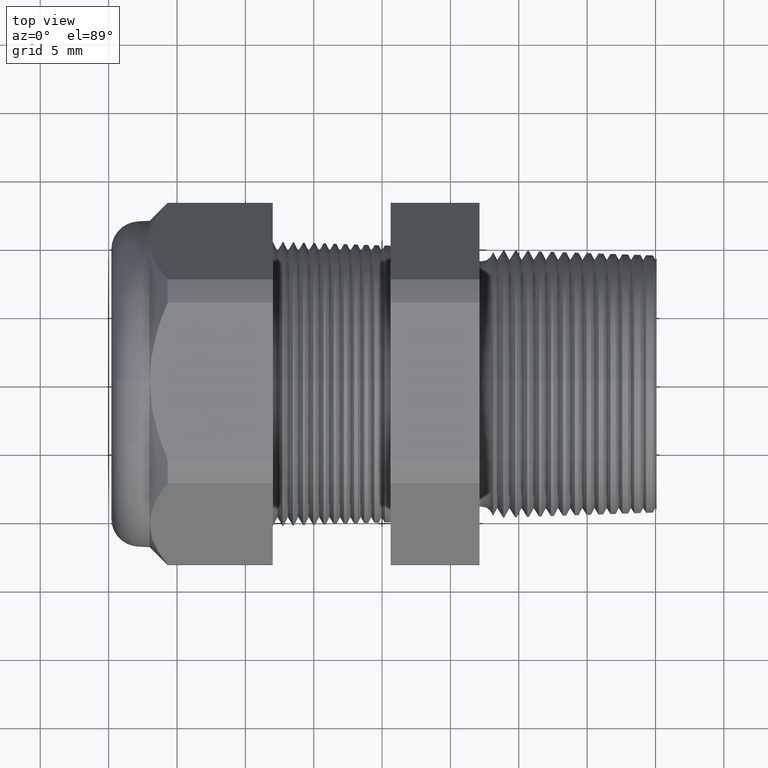
[diagram: clean part render]
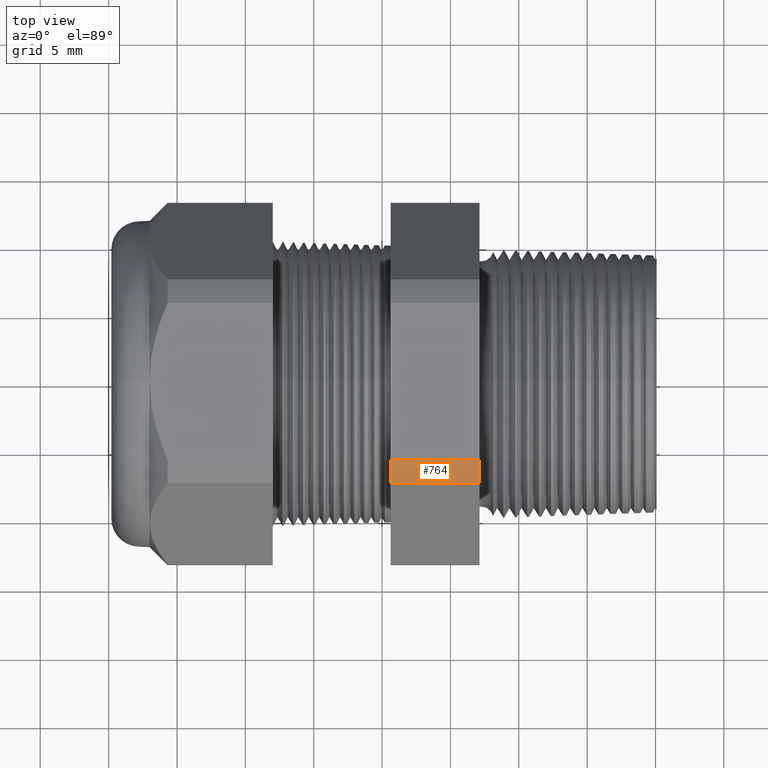
[diagram: same view with one face highlighted and labeled with its STEP entity id]
A machine part, top view. The second image highlights one B-rep face of the part: STEP entity #764.
In plain terms, the highlighted cylindrical surface (partial cylindrical patch) has radius 13.2512 mm, axis along (-1, 0, 0).
Its self-contained STEP definition (entity closure, byte-faithful):
#673 = VERTEX_POINT ( 'NONE', #3182 ) ;
#675 = EDGE_CURVE ( 'NONE', #673, #676, #3244, .T. ) ;
#676 = VERTEX_POINT ( 'NONE', #3239 ) ;
#764 = ADVANCED_FACE ( 'NONE', ( #3340 ), #3404, .T. ) ;
#765 = EDGE_LOOP ( 'NONE', ( #766, #767, #768, #771 ) ) ;
#766 = ORIENTED_EDGE ( 'NONE', *, *, #838, .F. ) ;
#767 = ORIENTED_EDGE ( 'NONE', *, *, #675, .F. ) ;
#768 = ORIENTED_EDGE ( 'NONE', *, *, #769, .T. ) ;
#769 = EDGE_CURVE ( 'NONE', #673, #770, #3399, .T. ) ;
#770 = VERTEX_POINT ( 'NONE', #3395 ) ;
#771 = ORIENTED_EDGE ( 'NONE', *, *, #772, .F. ) ;
#772 = EDGE_CURVE ( 'NONE', #839, #770, #3394, .T. ) ;
#838 = EDGE_CURVE ( 'NONE', #676, #839, #3477, .T. ) ;
#839 = VERTEX_POINT ( 'NONE', #3469 ) ;
#3182 = CARTESIAN_POINT ( 'NONE',  ( -0.3100000000000000000, -0.2264307620443835300, 0.4699999999999997000 ) ) ;
#3239 = CARTESIAN_POINT ( 'NONE',  ( -0.3100000000000000000, -0.2938165587564945900, 0.4310947921287050500 ) ) ;
#3240 = DIRECTION ( 'NONE',  ( 0.0000000000000000000, 0.0000000000000000000, -1.000000000000000000 ) ) ;
#3241 = DIRECTION ( 'NONE',  ( 1.000000000000000000, 0.0000000000000000000, 0.0000000000000000000 ) ) ;
#3242 = CARTESIAN_POINT ( 'NONE',  ( -0.3100000000000000000, 0.0000000000000000000, 0.0000000000000000000 ) ) ;
#3243 = AXIS2_PLACEMENT_3D ( 'NONE', #3242, #3241, #3240 ) ;
#3244 = CIRCLE ( 'NONE', #3243, 0.5217000000000000500 ) ;
#3340 = FACE_OUTER_BOUND ( 'NONE', #765, .T. ) ;
#3390 = DIRECTION ( 'NONE',  ( 0.0000000000000000000, 0.0000000000000000000, 1.000000000000000000 ) ) ;
#3391 = DIRECTION ( 'NONE',  ( -1.000000000000000000, 0.0000000000000000000, 0.0000000000000000000 ) ) ;
#3392 = CARTESIAN_POINT ( 'NONE',  ( -0.5659055118110235500, 0.0000000000000000000, 0.0000000000000000000 ) ) ;
#3393 = AXIS2_PLACEMENT_3D ( 'NONE', #3392, #3391, #3390 ) ;
#3394 = CIRCLE ( 'NONE', #3393, 0.5217000000000000500 ) ;
#3395 = CARTESIAN_POINT ( 'NONE',  ( -0.5659055118110235500, -0.2264307620443835300, 0.4699999999999997000 ) ) ;
#3396 = DIRECTION ( 'NONE',  ( -1.000000000000000000, 0.0000000000000000000, 0.0000000000000000000 ) ) ;
#3397 = VECTOR ( 'NONE', #3396, 39.37007874015748100 ) ;
#3398 = CARTESIAN_POINT ( 'NONE',  ( 0.2000000000000000400, -0.2264307620443835300, 0.4699999999999997000 ) ) ;
#3399 = LINE ( 'NONE', #3398, #3397 ) ;
#3400 = DIRECTION ( 'NONE',  ( 0.0000000000000000000, 0.0000000000000000000, 1.000000000000000000 ) ) ;
#3401 = DIRECTION ( 'NONE',  ( -1.000000000000000000, 0.0000000000000000000, 0.0000000000000000000 ) ) ;
#3402 = CARTESIAN_POINT ( 'NONE',  ( 0.2000000000000000400, 0.0000000000000000000, 0.0000000000000000000 ) ) ;
#3403 = AXIS2_PLACEMENT_3D ( 'NONE', #3402, #3401, #3400 ) ;
#3404 = CYLINDRICAL_SURFACE ( 'NONE', #3403, 0.5217000000000000500 ) ;
#3469 = CARTESIAN_POINT ( 'NONE',  ( -0.5659055118110235500, -0.2938165587564945900, 0.4310947921287050500 ) ) ;
#3470 = DIRECTION ( 'NONE',  ( -1.000000000000000000, 0.0000000000000000000, 0.0000000000000000000 ) ) ;
#3471 = VECTOR ( 'NONE', #3470, 39.37007874015748100 ) ;
#3472 = CARTESIAN_POINT ( 'NONE',  ( 0.2000000000000000400, -0.2938165587564945900, 0.4310947921287050500 ) ) ;
#3477 = LINE ( 'NONE', #3472, #3471 ) ;